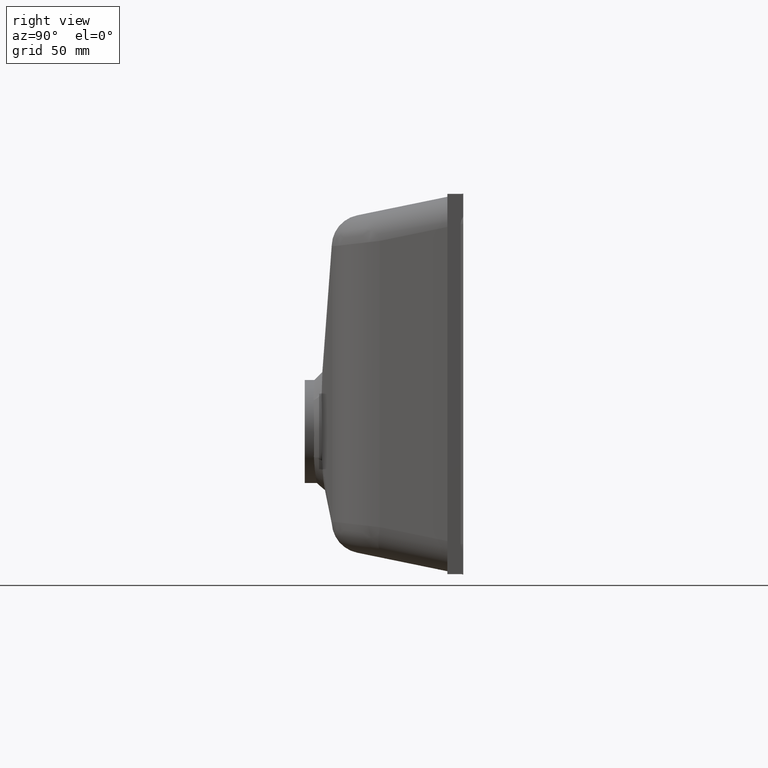
[diagram: clean part render]
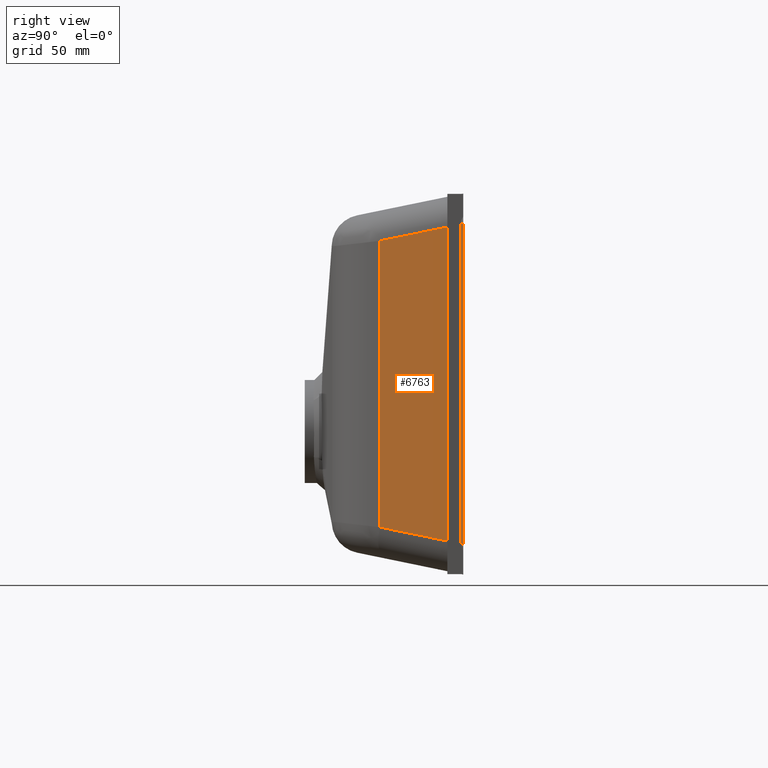
[diagram: same view with one face highlighted and labeled with its STEP entity id]
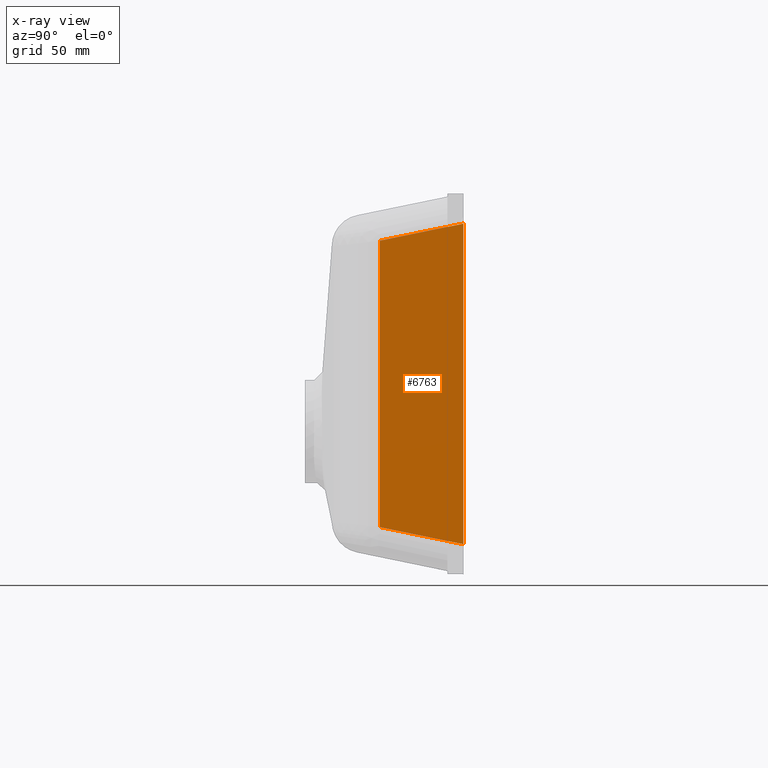
[diagram: x-ray of the same camera — body ghosted, the highlighted face saturated]
A machine part, right view. The second image highlights one B-rep face of the part: STEP entity #6763.
The next image is the same camera in x-ray: the body ghosted, the highlighted face saturated — about 0% of this face is hidden behind the body in this view.
In plain terms, the highlighted planar face has unit normal (0.9461, -0.324, 0).
Its self-contained STEP definition (entity closure, byte-faithful):
#145 = CARTESIAN_POINT ( 'NONE',  ( 172.5634187975858300, -52.57968386922602400, -109.9999999999999900 ) ) ;
#352 = EDGE_CURVE ( 'NONE', #390, #1092, #721, .T. ) ;
#390 = VERTEX_POINT ( 'NONE', #3665 ) ;
#518 = LINE ( 'NONE', #1494, #3798 ) ;
#525 = DIRECTION ( 'NONE',  ( 5.046468293750712000E-016, -0.0000000000000000000, -1.000000000000000000 ) ) ;
#590 = EDGE_LOOP ( 'NONE', ( #1429, #2697, #1911, #2270 ) ) ;
#721 = LINE ( 'NONE', #740, #4028 ) ;
#740 = CARTESIAN_POINT ( 'NONE',  ( 176.6880904676201300, -40.53564259272566500, 92.79330983856374400 ) ) ;
#1092 = VERTEX_POINT ( 'NONE', #6532 ) ;
#1429 = ORIENTED_EDGE ( 'NONE', *, *, #352, .T. ) ;
#1486 = EDGE_CURVE ( 'NONE', #1092, #5280, #5940, .T. ) ;
#1494 = CARTESIAN_POINT ( 'NONE',  ( 190.0397654959419900, -1.548751510026054900, -100.8043148555567800 ) ) ;
#1531 = DIRECTION ( 'NONE',  ( 0.3180393894549253800, 0.9286750172083819700, -0.1908236336729543200 ) ) ;
#1911 = ORIENTED_EDGE ( 'NONE', *, *, #7423, .T. ) ;
#2270 = ORIENTED_EDGE ( 'NONE', *, *, #7197, .F. ) ;
#2363 = AXIS2_PLACEMENT_3D ( 'NONE', #6637, #6580, #6564 ) ;
#2697 = ORIENTED_EDGE ( 'NONE', *, *, #1486, .T. ) ;
#2728 = DIRECTION ( 'NONE',  ( 5.046468293750710000E-016, 0.0000000000000000000, -1.000000000000000000 ) ) ;
#2951 = CARTESIAN_POINT ( 'NONE',  ( 190.5701598486906200, 0.0000000000000000000, -109.9999999999999700 ) ) ;
#3665 = CARTESIAN_POINT ( 'NONE',  ( 190.5701598486905700, 0.0000000000000000000, 101.1225514672060500 ) ) ;
#3687 = FACE_OUTER_BOUND ( 'NONE', #590, .T. ) ;
#3798 = VECTOR ( 'NONE', #1531, 1000.000000000000000 ) ;
#4028 = VECTOR ( 'NONE', #5606, 1000.000000000000200 ) ;
#4439 = LINE ( 'NONE', #2951, #7115 ) ;
#5194 = VERTEX_POINT ( 'NONE', #5500 ) ;
#5280 = VERTEX_POINT ( 'NONE', #5471 ) ;
#5471 = CARTESIAN_POINT ( 'NONE',  ( 172.5634187975858300, -52.57968386922603100, -90.31850683654315000 ) ) ;
#5500 = CARTESIAN_POINT ( 'NONE',  ( 190.5701598486906200, 0.0000000000000000000, -101.1225514672059800 ) ) ;
#5606 = DIRECTION ( 'NONE',  ( -0.3180393894549249900, -0.9286750172083816400, -0.1908236336729560400 ) ) ;
#5940 = LINE ( 'NONE', #145, #7457 ) ;
#6532 = CARTESIAN_POINT ( 'NONE',  ( 172.5634187975857400, -52.57968386922604500, 90.31850683654312200 ) ) ;
#6564 = DIRECTION ( 'NONE',  ( -5.046468293750712000E-016, 0.0000000000000000000, 1.000000000000000000 ) ) ;
#6580 = DIRECTION ( 'NONE',  ( 0.9460594866253351200, -0.3239929748716899900, 4.774259203256829900E-016 ) ) ;
#6637 = CARTESIAN_POINT ( 'NONE',  ( 189.4605948662533300, -3.239929748716899600, -109.9999999999999700 ) ) ;
#6763 = ADVANCED_FACE ( 'NONE', ( #3687 ), #7159, .T. ) ;
#7115 = VECTOR ( 'NONE', #2728, 1000.000000000000000 ) ;
#7159 = PLANE ( 'NONE',  #2363 ) ;
#7197 = EDGE_CURVE ( 'NONE', #390, #5194, #4439, .T. ) ;
#7423 = EDGE_CURVE ( 'NONE', #5280, #5194, #518, .T. ) ;
#7457 = VECTOR ( 'NONE', #525, 1000.000000000000000 ) ;